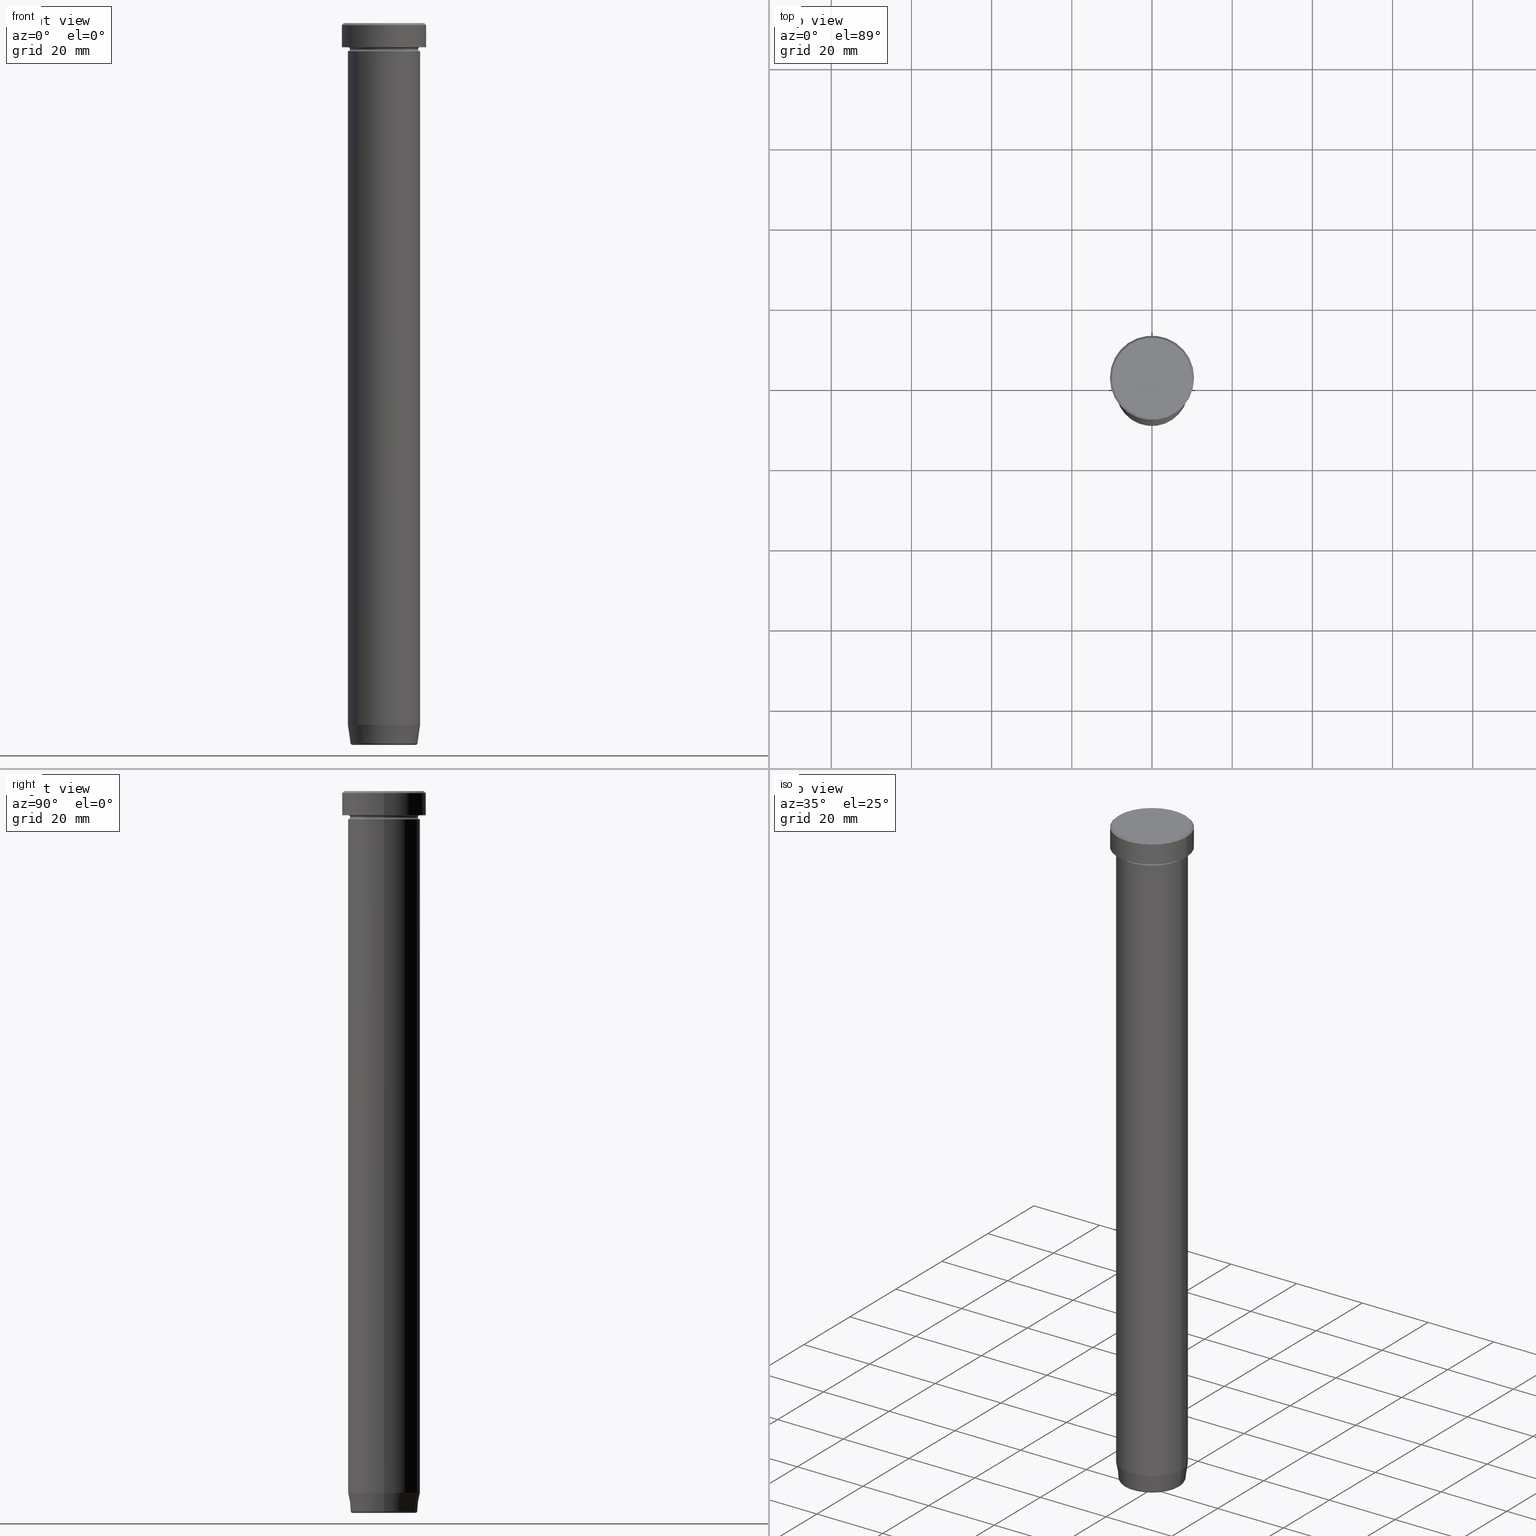
[diagram: canonical four-view strip — front | top / right | iso, engineering-drawing reading convention]
A machine part, canonical four-view strip (front | top / right | iso — engineering-drawing reading convention). The complete STEP part file that produces these views, byte-faithful:
ISO-10303-21;
HEADER;
FILE_DESCRIPTION (( 'STEP AP203' ),
    '1' );
FILE_NAME ('ff41.STEP',
    '2024-01-02T19:32:42',
    ( '' ),
    ( '' ),
    'SwSTEP 2.0',
    'SolidWorks 2019',
    '' );
FILE_SCHEMA (( 'CONFIG_CONTROL_DESIGN' ));
ENDSEC;

DATA;
#1 = EDGE_CURVE ( 'NONE', #506, #170, #214, .T. ) ;
#2 = ORIENTED_EDGE ( 'NONE', *, *, #432, .T. ) ;
#3 = CARTESIAN_POINT ( 'NONE',  ( 0.000000000000000000, 0.000000000000000000, 0.000000000000000000 ) ) ;
#4 = DIRECTION ( 'NONE',  ( 1.224646799147353207E-16, 1.000000000000000000, 0.000000000000000000 ) ) ;
#5 = ORIENTED_EDGE ( 'NONE', *, *, #24, .T. ) ;
#6 = AXIS2_PLACEMENT_3D ( 'NONE', #279, #282, #413 ) ;
#7 = SHAPE_DEFINITION_REPRESENTATION ( #100, #233 ) ;
#8 = ORIENTED_EDGE ( 'NONE', *, *, #472, .T. ) ;
#9 = FACE_OUTER_BOUND ( 'NONE', #414, .T. ) ;
#10 = ORIENTED_EDGE ( 'NONE', *, *, #1, .T. ) ;
#11 = DATE_AND_TIME ( #202, #352 ) ;
#12 = ORIENTED_EDGE ( 'NONE', *, *, #432, .F. ) ;
#13 = DIRECTION ( 'NONE',  ( 1.000000000000000000, 0.000000000000000000, 0.000000000000000000 ) ) ;
#14 = FACE_OUTER_BOUND ( 'NONE', #498, .T. ) ;
#15 = ADVANCED_FACE ( 'NONE', ( #274 ), #357, .T. ) ;
#16 = ORIENTED_EDGE ( 'NONE', *, *, #447, .T. ) ;
#17 = APPROVAL_STATUS ( 'not_yet_approved' ) ;
#18 = AXIS2_PLACEMENT_3D ( 'NONE', #152, #53, #342 ) ;
#19 = CONICAL_SURFACE ( 'NONE', #496, 10.00000000000000178, 0.7853981633974447263 ) ;
#20 = LINE ( 'NONE', #300, #351 ) ;
#21 = CARTESIAN_POINT ( 'NONE',  ( -10.50000000000000000, 1.285879139104720831E-15, -0.5000000000000023315 ) ) ;
#22 = ORIENTED_EDGE ( 'NONE', *, *, #30, .T. ) ;
#23 = DESIGN_CONTEXT ( 'detailed design', #485, 'design' ) ;
#24 = EDGE_CURVE ( 'NONE', #383, #170, #126, .T. ) ;
#25 = FACE_OUTER_BOUND ( 'NONE', #326, .T. ) ;
#26 = DIRECTION ( 'NONE',  ( 0.000000000000000000, 0.000000000000000000, -1.000000000000000000 ) ) ;
#27 = TOROIDAL_SURFACE ( 'NONE', #428, 9.000000000000000000, 0.5000000000000000000 ) ;
#28 = DIRECTION ( 'NONE',  ( 0.000000000000000000, 0.000000000000000000, -1.000000000000000000 ) ) ;
#29 = DIRECTION ( 'NONE',  ( -1.000000000000000000, 0.000000000000000000, 0.000000000000000000 ) ) ;
#30 = EDGE_CURVE ( 'NONE', #199, #220, #85, .T. ) ;
#31 = PLANE ( 'NONE',  #104 ) ;
#32 = VECTOR ( 'NONE', #69, 1000.000000000000000 ) ;
#33 = DIRECTION ( 'NONE',  ( -1.000000000000000000, -1.224646799147353454E-16, 0.000000000000000000 ) ) ;
#34 = EDGE_LOOP ( 'NONE', ( #556, #64, #161, #564 ) ) ;
#35 = PERSON_AND_ORGANIZATION_ROLE ( 'design_owner' ) ;
#36 = EDGE_CURVE ( 'NONE', #331, #559, #68, .T. ) ;
#37 = CARTESIAN_POINT ( 'NONE',  ( 0.000000000000000000, 0.000000000000000000, -175.0000000000000000 ) ) ;
#38 = DIRECTION ( 'NONE',  ( -0.000000000000000000, -0.000000000000000000, 1.000000000000000000 ) ) ;
#39 = DIRECTION ( 'NONE',  ( -0.000000000000000000, -0.000000000000000000, 1.000000000000000000 ) ) ;
#40 = CIRCLE ( 'NONE', #444, 9.000000000000000000 ) ;
#41 = CARTESIAN_POINT ( 'NONE',  ( 0.000000000000000000, 0.000000000000000000, 0.000000000000000000 ) ) ;
#42 = LINE ( 'NONE', #555, #305 ) ;
#43 = VERTEX_POINT ( 'NONE', #509 ) ;
#44 = ORIENTED_EDGE ( 'NONE', *, *, #280, .T. ) ;
#45 = DIRECTION ( 'NONE',  ( 1.000000000000000000, 0.000000000000000000, 0.000000000000000000 ) ) ;
#46 = FACE_OUTER_BOUND ( 'NONE', #595, .T. ) ;
#47 = ADVANCED_FACE ( 'NONE', ( #46 ), #177, .T. ) ;
#48 = EDGE_LOOP ( 'NONE', ( #97, #2, #422, #334 ) ) ;
#49 = CALENDAR_DATE ( 2024, 2, 1 ) ;
#50 = DIRECTION ( 'NONE',  ( -0.000000000000000000, -0.000000000000000000, 1.000000000000000000 ) ) ;
#51 = AXIS2_PLACEMENT_3D ( 'NONE', #585, #122, #313 ) ;
#52 = COORDINATED_UNIVERSAL_TIME_OFFSET ( 1, 0, .AHEAD. ) ;
#53 = DIRECTION ( 'NONE',  ( 0.000000000000000000, 0.000000000000000000, -1.000000000000000000 ) ) ;
#54 = CARTESIAN_POINT ( 'NONE',  ( -8.357786491950713881, 1.062857883382530116E-15, -179.5695865504800111 ) ) ;
#55 = EDGE_CURVE ( 'NONE', #199, #448, #596, .T. ) ;
#56 = PERSON ( 'NEUR�EN�', 'NEUR�EN�', 'NEUR�EN�', ('NEUR�EN�'), ('NEUR�EN�'), ('NEUR�EN�') ) ;
#57 = CARTESIAN_POINT ( 'NONE',  ( 0.000000000000000000, 0.000000000000000000, 0.000000000000000000 ) ) ;
#58 = ORIENTED_EDGE ( 'NONE', *, *, #353, .F. ) ;
#59 = DATE_AND_TIME ( #49, #455 ) ;
#60 = AXIS2_PLACEMENT_3D ( 'NONE', #231, #137, #281 ) ;
#61 = CIRCLE ( 'NONE', #168, 0.5000000000000004441 ) ;
#62 = CC_DESIGN_APPROVAL ( #415, ( #340 ) ) ;
#63 = DIRECTION ( 'NONE',  ( 0.000000000000000000, 0.000000000000000000, -1.000000000000000000 ) ) ;
#64 = ORIENTED_EDGE ( 'NONE', *, *, #111, .T. ) ;
#65 = EDGE_CURVE ( 'NONE', #495, #386, #543, .T. ) ;
#66 = ORIENTED_EDGE ( 'NONE', *, *, #472, .F. ) ;
#67 = CARTESIAN_POINT ( 'NONE',  ( 0.000000000000000000, 0.000000000000000000, 0.000000000000000000 ) ) ;
#68 = CIRCLE ( 'NONE', #271, 8.499999999999998224 ) ;
#69 = DIRECTION ( 'NONE',  ( -0.1391731009600659097, 1.704378926181561528E-17, 0.9902680687415702510 ) ) ;
#70 = CONICAL_SURFACE ( 'NONE', #18, 10.00000000000000178, 0.7853981633974447263 ) ;
#71 = CARTESIAN_POINT ( 'NONE',  ( 0.000000000000000000, 0.000000000000000000, 0.000000000000000000 ) ) ;
#72 = CIRCLE ( 'NONE', #347, 10.00000000000000178 ) ;
#73 = DIRECTION ( 'NONE',  ( -1.000000000000000000, 0.000000000000000000, 0.000000000000000000 ) ) ;
#74 = ADVANCED_FACE ( 'NONE', ( #599 ), #244, .T. ) ;
#75 = CC_DESIGN_APPROVAL ( #590, ( #524 ) ) ;
#76 = EDGE_LOOP ( 'NONE', ( #179, #366, #269, #187 ) ) ;
#77 = CARTESIAN_POINT ( 'NONE',  ( 0.000000000000000000, 0.000000000000000000, -22.00000000000000000 ) ) ;
#78 = DIRECTION ( 'NONE',  ( 1.000000000000000000, 0.000000000000000000, 0.000000000000000000 ) ) ;
#79 = CIRCLE ( 'NONE', #248, 9.000000000000000000 ) ;
#80 = ORIENTED_EDGE ( 'NONE', *, *, #315, .F. ) ;
#81 = EDGE_CURVE ( 'NONE', #459, #390, #550, .T. ) ;
#82 = CARTESIAN_POINT ( 'NONE',  ( 0.000000000000000000, 0.000000000000000000, 0.000000000000000000 ) ) ;
#83 = AXIS2_PLACEMENT_3D ( 'NONE', #188, #234, #238 ) ;
#84 = CC_DESIGN_PERSON_AND_ORGANIZATION_ASSIGNMENT ( #98, #294, ( #340 ) ) ;
#85 = CIRCLE ( 'NONE', #379, 9.000000000000000000 ) ;
#86 = DIRECTION ( 'NONE',  ( 0.000000000000000000, 0.000000000000000000, -1.000000000000000000 ) ) ;
#87 = DIRECTION ( 'NONE',  ( -1.000000000000000000, 1.224646799147353454E-16, 0.000000000000000000 ) ) ;
#88 = FACE_OUTER_BOUND ( 'NONE', #286, .T. ) ;
#89 = DIRECTION ( 'NONE',  ( -0.000000000000000000, -0.000000000000000000, 1.000000000000000000 ) ) ;
#90 = AXIS2_PLACEMENT_3D ( 'NONE', #440, #480, #116 ) ;
#91 = CIRCLE ( 'NONE', #181, 10.50000000000000000 ) ;
#92 = ORIENTED_EDGE ( 'NONE', *, *, #361, .T. ) ;
#93 = DIRECTION ( 'NONE',  ( -0.000000000000000000, -0.000000000000000000, 1.000000000000000000 ) ) ;
#94 = CARTESIAN_POINT ( 'NONE',  ( 0.000000000000000000, 0.000000000000000000, -7.000000000000000000 ) ) ;
#95 = EDGE_CURVE ( 'NONE', #559, #210, #525, .T. ) ;
#96 = ORIENTED_EDGE ( 'NONE', *, *, #402, .T. ) ;
#97 = ORIENTED_EDGE ( 'NONE', *, *, #534, .T. ) ;
#98 = PERSON_AND_ORGANIZATION ( #56, #463 ) ;
#99 = DIRECTION ( 'NONE',  ( -0.000000000000000000, -0.000000000000000000, 1.000000000000000000 ) ) ;
#100 = PRODUCT_DEFINITION_SHAPE ( 'NONE', 'NONE',  #264 ) ;
#101 = COORDINATED_UNIVERSAL_TIME_OFFSET ( 1, 0, .AHEAD. ) ;
#102 = FACE_BOUND ( 'NONE', #515, .T. ) ;
#103 = CARTESIAN_POINT ( 'NONE',  ( 0.000000000000000000, 0.000000000000000000, -7.000000000000000000 ) ) ;
#104 = AXIS2_PLACEMENT_3D ( 'NONE', #310, #314, #500 ) ;
#105 = EDGE_CURVE ( 'NONE', #331, #170, #560, .T. ) ;
#106 = CARTESIAN_POINT ( 'NONE',  ( 0.000000000000000000, 0.000000000000000000, 0.000000000000000000 ) ) ;
#107 = DIRECTION ( 'NONE',  ( 1.000000000000000000, 0.000000000000000000, 0.000000000000000000 ) ) ;
#108 = COORDINATED_UNIVERSAL_TIME_OFFSET ( 1, 0, .AHEAD. ) ;
#109 = FACE_OUTER_BOUND ( 'NONE', #48, .T. ) ;
#110 = ORIENTED_EDGE ( 'NONE', *, *, #120, .F. ) ;
#111 = EDGE_CURVE ( 'NONE', #43, #421, #570, .T. ) ;
#112 = EDGE_LOOP ( 'NONE', ( #228, #535, #219, #355 ) ) ;
#113 = AXIS2_PLACEMENT_3D ( 'NONE', #213, #63, #107 ) ;
#114 = AXIS2_PLACEMENT_3D ( 'NONE', #344, #531, #522 ) ;
#115 = CIRCLE ( 'NONE', #249, 7.862652457579924814 ) ;
#116 = DIRECTION ( 'NONE',  ( 1.000000000000000000, 0.000000000000000000, 0.000000000000000000 ) ) ;
#117 = LOCAL_TIME ( 20, 32, 42.00000000000000000, #101 ) ;
#118 = DIRECTION ( 'NONE',  ( -0.000000000000000000, -0.000000000000000000, 1.000000000000000000 ) ) ;
#119 = ORIENTED_EDGE ( 'NONE', *, *, #173, .F. ) ;
#120 = EDGE_CURVE ( 'NONE', #170, #383, #79, .T. ) ;
#121 = ORIENTED_EDGE ( 'NONE', *, *, #488, .F. ) ;
#122 = DIRECTION ( 'NONE',  ( 0.000000000000000000, 0.000000000000000000, -1.000000000000000000 ) ) ;
#123 = AXIS2_PLACEMENT_3D ( 'NONE', #41, #503, #78 ) ;
#124 = ORIENTED_EDGE ( 'NONE', *, *, #453, .F. ) ;
#125 = CARTESIAN_POINT ( 'NONE',  ( 10.50000000000000000, 0.000000000000000000, -0.5000000000000023315 ) ) ;
#126 = CIRCLE ( 'NONE', #582, 9.000000000000000000 ) ;
#127 = VERTEX_POINT ( 'NONE', #562 ) ;
#128 = EDGE_CURVE ( 'NONE', #495, #411, #311, .T. ) ;
#129 = ORIENTED_EDGE ( 'NONE', *, *, #527, .T. ) ;
#130 = CARTESIAN_POINT ( 'NONE',  ( 0.000000000000000000, 0.000000000000000000, -179.5695865504800111 ) ) ;
#131 = CIRCLE ( 'NONE', #113, 10.50000000000000000 ) ;
#132 = CYLINDRICAL_SURFACE ( 'NONE', #486, 9.000000000000000000 ) ;
#133 =( GEOMETRIC_REPRESENTATION_CONTEXT ( 3 ) GLOBAL_UNCERTAINTY_ASSIGNED_CONTEXT ( ( #316 ) ) GLOBAL_UNIT_ASSIGNED_CONTEXT ( ( #557, #553, #359 ) ) REPRESENTATION_CONTEXT ( 'NONE', 'WORKASPACE' ) );
#134 = DIRECTION ( 'NONE',  ( -0.000000000000000000, -0.000000000000000000, 1.000000000000000000 ) ) ;
#135 = DIRECTION ( 'NONE',  ( -0.000000000000000000, -0.000000000000000000, 1.000000000000000000 ) ) ;
#136 = FACE_OUTER_BOUND ( 'NONE', #405, .T. ) ;
#137 = DIRECTION ( 'NONE',  ( -0.000000000000000000, -0.000000000000000000, 1.000000000000000000 ) ) ;
#138 = LINE ( 'NONE', #462, #275 ) ;
#139 = EDGE_CURVE ( 'NONE', #220, #450, #42, .T. ) ;
#140 = CARTESIAN_POINT ( 'NONE',  ( 9.000000000000000000, 0.000000000000000000, -22.00000000000000000 ) ) ;
#141 = AXIS2_PLACEMENT_3D ( 'NONE', #460, #420, #235 ) ;
#142 = AXIS2_PLACEMENT_3D ( 'NONE', #77, #533, #490 ) ;
#143 = ORIENTED_EDGE ( 'NONE', *, *, #447, .F. ) ;
#144 = DATE_AND_TIME ( #206, #241 ) ;
#145 = DIRECTION ( 'NONE',  ( 0.000000000000000000, 0.000000000000000000, -1.000000000000000000 ) ) ;
#146 = DATE_TIME_ROLE ( 'creation_date' ) ;
#147 = FACE_OUTER_BOUND ( 'NONE', #529, .T. ) ;
#148 = APPROVAL ( #388, 'NEUR�EN�' ) ;
#149 = APPROVAL_DATE_TIME ( #380, #415 ) ;
#150 = FACE_OUTER_BOUND ( 'NONE', #291, .T. ) ;
#151 = EDGE_LOOP ( 'NONE', ( #481, #22, #587, #119 ) ) ;
#152 = CARTESIAN_POINT ( 'NONE',  ( 0.000000000000000000, 0.000000000000000000, 0.000000000000000000 ) ) ;
#153 = APPROVAL_ROLE ( '' ) ;
#154 = CYLINDRICAL_SURFACE ( 'NONE', #538, 10.50000000000000000 ) ;
#155 = ORIENTED_EDGE ( 'NONE', *, *, #371, .T. ) ;
#156 = DIRECTION ( 'NONE',  ( 0.000000000000000000, 0.000000000000000000, -1.000000000000000000 ) ) ;
#157 = ADVANCED_FACE ( 'NONE', ( #229 ), #204, .T. ) ;
#158 = CIRCLE ( 'NONE', #141, 9.000000000000000000 ) ;
#159 = AXIS2_PLACEMENT_3D ( 'NONE', #438, #389, #348 ) ;
#160 = CARTESIAN_POINT ( 'NONE',  ( 10.00000000000000178, 1.255262969126037241E-15, 0.000000000000000000 ) ) ;
#161 = ORIENTED_EDGE ( 'NONE', *, *, #594, .T. ) ;
#162 = FACE_OUTER_BOUND ( 'NONE', #304, .T. ) ;
#163 = ORIENTED_EDGE ( 'NONE', *, *, #105, .T. ) ;
#164 = ADVANCED_FACE ( 'NONE', ( #507 ), #132, .T. ) ;
#165 = FACE_OUTER_BOUND ( 'NONE', #567, .T. ) ;
#166 = CONICAL_SURFACE ( 'NONE', #530, 8.297295826488038983, 0.1396263401595468356 ) ;
#167 = DIRECTION ( 'NONE',  ( -0.7071067811865450192, 0.000000000000000000, -0.7071067811865500152 ) ) ;
#168 = AXIS2_PLACEMENT_3D ( 'NONE', #581, #309, #28 ) ;
#169 = ORIENTED_EDGE ( 'NONE', *, *, #1, .F. ) ;
#170 = VERTEX_POINT ( 'NONE', #416 ) ;
#171 = ORIENTED_EDGE ( 'NONE', *, *, #36, .F. ) ;
#172 = CARTESIAN_POINT ( 'NONE',  ( 0.000000000000000000, 0.000000000000000000, -0.5000000000000023315 ) ) ;
#173 = EDGE_CURVE ( 'NONE', #448, #450, #158, .T. ) ;
#174 = DIRECTION ( 'NONE',  ( -0.000000000000000000, -0.000000000000000000, 1.000000000000000000 ) ) ;
#175 = FACE_OUTER_BOUND ( 'NONE', #542, .T. ) ;
#176 = PRODUCT_RELATED_PRODUCT_CATEGORY ( 'detail', '', ( #208 ) ) ;
#177 = PLANE ( 'NONE',  #433 ) ;
#178 = DIRECTION ( 'NONE',  ( 1.000000000000000000, 0.000000000000000000, 0.000000000000000000 ) ) ;
#179 = ORIENTED_EDGE ( 'NONE', *, *, #36, .T. ) ;
#180 = DIRECTION ( 'NONE',  ( 1.000000000000000000, 0.000000000000000000, 0.000000000000000000 ) ) ;
#181 = AXIS2_PLACEMENT_3D ( 'NONE', #172, #443, #263 ) ;
#182 = VERTEX_POINT ( 'NONE', #369 ) ;
#183 = VERTEX_POINT ( 'NONE', #140 ) ;
#184 = DIRECTION ( 'NONE',  ( -0.000000000000000000, -0.000000000000000000, 1.000000000000000000 ) ) ;
#185 = CARTESIAN_POINT ( 'NONE',  ( -9.000000000000000000, 1.102182119232617714E-15, -6.500000000000000888 ) ) ;
#186 = ADVANCED_FACE ( 'NONE', ( #329 ), #154, .T. ) ;
#187 = ORIENTED_EDGE ( 'NONE', *, *, #402, .F. ) ;
#188 = CARTESIAN_POINT ( 'NONE',  ( 0.000000000000000000, 0.000000000000000000, 0.000000000000000000 ) ) ;
#189 = CARTESIAN_POINT ( 'NONE',  ( 0.000000000000000000, 0.000000000000000000, 0.000000000000000000 ) ) ;
#190 = ORIENTED_EDGE ( 'NONE', *, *, #409, .T. ) ;
#191 = CARTESIAN_POINT ( 'NONE',  ( 0.000000000000000000, 0.000000000000000000, -6.500000000000000888 ) ) ;
#192 = CIRCLE ( 'NONE', #90, 9.000000000000000000 ) ;
#193 = TOROIDAL_SURFACE ( 'NONE', #398, 7.862652457579924814, 0.5000000000000000000 ) ;
#194 = TOROIDAL_SURFACE ( 'NONE', #51, 9.000000000000000000, 0.5000000000000000000 ) ;
#195 = ORIENTED_EDGE ( 'NONE', *, *, #173, .T. ) ;
#196 = ORIENTED_EDGE ( 'NONE', *, *, #371, .F. ) ;
#197 = CYLINDRICAL_SURFACE ( 'NONE', #346, 9.000000000000000000 ) ;
#198 = CC_DESIGN_PERSON_AND_ORGANIZATION_ASSIGNMENT ( #458, #35, ( #208 ) ) ;
#199 = VERTEX_POINT ( 'NONE', #303 ) ;
#200 = SECURITY_CLASSIFICATION_LEVEL ( 'unclassified' ) ;
#201 = DIRECTION ( 'NONE',  ( 1.000000000000000000, 0.000000000000000000, 0.000000000000000000 ) ) ;
#202 = CALENDAR_DATE ( 2024, 2, 1 ) ;
#203 = DIRECTION ( 'NONE',  ( 1.000000000000000000, 0.000000000000000000, 0.000000000000000000 ) ) ;
#204 = TOROIDAL_SURFACE ( 'NONE', #404, 7.862652457579924814, 0.5000000000000000000 ) ;
#205 = AXIS2_PLACEMENT_3D ( 'NONE', #449, #265, #29 ) ;
#206 = CALENDAR_DATE ( 2024, 2, 1 ) ;
#207 = CC_DESIGN_SECURITY_CLASSIFICATION ( #340, ( #524 ) ) ;
#208 = PRODUCT ( 'ff41', 'ff41', '', ( #456 ) ) ;
#209 = DIRECTION ( 'NONE',  ( 0.000000000000000000, 0.000000000000000000, -1.000000000000000000 ) ) ;
#210 = VERTEX_POINT ( 'NONE', #429 ) ;
#211 = ADVANCED_FACE ( 'NONE', ( #102, #335 ), #578, .T. ) ;
#212 = APPROVAL_ROLE ( '' ) ;
#213 = CARTESIAN_POINT ( 'NONE',  ( 0.000000000000000000, 0.000000000000000000, -0.5000000000000023315 ) ) ;
#214 = LINE ( 'NONE', #573, #461 ) ;
#215 = LINE ( 'NONE', #407, #317 ) ;
#216 = CIRCLE ( 'NONE', #521, 9.000000000000000000 ) ;
#217 = CARTESIAN_POINT ( 'NONE',  ( 0.000000000000000000, 0.000000000000000000, -6.500000000000000888 ) ) ;
#218 = CC_DESIGN_PERSON_AND_ORGANIZATION_ASSIGNMENT ( #257, #250, ( #264 ) ) ;
#219 = ORIENTED_EDGE ( 'NONE', *, *, #534, .F. ) ;
#220 = VERTEX_POINT ( 'NONE', #385 ) ;
#221 = CARTESIAN_POINT ( 'NONE',  ( 0.000000000000000000, 0.000000000000000000, -22.00000000000000000 ) ) ;
#222 = VECTOR ( 'NONE', #89, 1000.000000000000000 ) ;
#223 = CARTESIAN_POINT ( 'NONE',  ( 9.000000000000000000, 0.000000000000000000, -22.00000000000000000 ) ) ;
#224 = CIRCLE ( 'NONE', #114, 0.5000000000000004441 ) ;
#225 = CARTESIAN_POINT ( 'NONE',  ( -9.000000000000000000, 1.102182119232617714E-15, -22.00000000000000000 ) ) ;
#226 = VECTOR ( 'NONE', #350, 1000.000000000000000 ) ;
#227 = DIRECTION ( 'NONE',  ( 1.000000000000000000, 0.000000000000000000, 0.000000000000000000 ) ) ;
#228 = ORIENTED_EDGE ( 'NONE', *, *, #492, .F. ) ;
#229 = FACE_OUTER_BOUND ( 'NONE', #112, .T. ) ;
#230 = APPLICATION_PROTOCOL_DEFINITION ( 'international standard', 'config_control_design', 1994, #485 ) ;
#231 = CARTESIAN_POINT ( 'NONE',  ( 0.000000000000000000, 0.000000000000000000, -6.000000000000000000 ) ) ;
#232 = DIRECTION ( 'NONE',  ( -0.000000000000000000, -0.000000000000000000, 1.000000000000000000 ) ) ;
#233 = ADVANCED_BREP_SHAPE_REPRESENTATION ( 'ff41', ( #396, #394, #123 ), #133 ) ;
#234 = DIRECTION ( 'NONE',  ( -0.000000000000000000, -0.000000000000000000, 1.000000000000000000 ) ) ;
#235 = DIRECTION ( 'NONE',  ( 1.000000000000000000, 0.000000000000000000, 0.000000000000000000 ) ) ;
#236 = CIRCLE ( 'NONE', #159, 0.5000000000000004441 ) ;
#237 = ADVANCED_FACE ( 'NONE', ( #14 ), #523, .T. ) ;
#238 = DIRECTION ( 'NONE',  ( 1.000000000000000000, 0.000000000000000000, 0.000000000000000000 ) ) ;
#239 = VERTEX_POINT ( 'NONE', #21 ) ;
#240 = DIRECTION ( 'NONE',  ( 1.000000000000000000, 0.000000000000000000, 0.000000000000000000 ) ) ;
#241 = LOCAL_TIME ( 20, 32, 42.00000000000000000, #108 ) ;
#242 = ORIENTED_EDGE ( 'NONE', *, *, #65, .F. ) ;
#243 = CARTESIAN_POINT ( 'NONE',  ( 0.000000000000000000, 0.000000000000000000, -22.00000000000000000 ) ) ;
#244 = CYLINDRICAL_SURFACE ( 'NONE', #552, 9.000000000000000000 ) ;
#245 = ADVANCED_FACE ( 'NONE', ( #147 ), #70, .T. ) ;
#246 = DATE_AND_TIME ( #518, #117 ) ;
#247 = DIRECTION ( 'NONE',  ( -0.000000000000000000, -0.000000000000000000, 1.000000000000000000 ) ) ;
#248 = AXIS2_PLACEMENT_3D ( 'NONE', #94, #426, #289 ) ;
#249 = AXIS2_PLACEMENT_3D ( 'NONE', #358, #26, #399 ) ;
#250 = PERSON_AND_ORGANIZATION_ROLE ( 'creator' ) ;
#251 = ORIENTED_EDGE ( 'NONE', *, *, #81, .F. ) ;
#252 = CARTESIAN_POINT ( 'NONE',  ( 9.000000000000000000, 0.000000000000000000, 0.000000000000000000 ) ) ;
#253 = AXIS2_PLACEMENT_3D ( 'NONE', #464, #368, #33 ) ;
#254 = PERSON_AND_ORGANIZATION ( #56, #463 ) ;
#255 = CARTESIAN_POINT ( 'NONE',  ( 0.000000000000000000, 0.000000000000000000, -6.500000000000000888 ) ) ;
#256 = ORIENTED_EDGE ( 'NONE', *, *, #361, .F. ) ;
#257 = PERSON_AND_ORGANIZATION ( #56, #463 ) ;
#258 = DIRECTION ( 'NONE',  ( 1.000000000000000000, 0.000000000000000000, 0.000000000000000000 ) ) ;
#259 = EDGE_CURVE ( 'NONE', #386, #343, #224, .T. ) ;
#260 = VECTOR ( 'NONE', #569, 1000.000000000000000 ) ;
#261 = CALENDAR_DATE ( 2024, 2, 1 ) ;
#262 = CARTESIAN_POINT ( 'NONE',  ( 0.000000000000000000, 0.000000000000000000, 0.000000000000000000 ) ) ;
#263 = DIRECTION ( 'NONE',  ( 1.000000000000000000, 0.000000000000000000, 0.000000000000000000 ) ) ;
#264 = PRODUCT_DEFINITION ( 'NEZN�M�', '', #524, #23 ) ;
#265 = DIRECTION ( 'NONE',  ( -0.000000000000000000, -0.000000000000000000, 1.000000000000000000 ) ) ;
#266 = AXIS2_PLACEMENT_3D ( 'NONE', #243, #86, #288 ) ;
#267 = APPROVAL_PERSON_ORGANIZATION ( #377, #415, #153 ) ;
#268 = CARTESIAN_POINT ( 'NONE',  ( 10.50000000000000000, 0.000000000000000000, -6.000000000000000000 ) ) ;
#269 = ORIENTED_EDGE ( 'NONE', *, *, #517, .F. ) ;
#270 = DIRECTION ( 'NONE',  ( -1.000000000000000000, 0.000000000000000000, 0.000000000000000000 ) ) ;
#271 = AXIS2_PLACEMENT_3D ( 'NONE', #191, #99, #180 ) ;
#272 = DIRECTION ( 'NONE',  ( 1.000000000000000000, 0.000000000000000000, 0.000000000000000000 ) ) ;
#273 = EDGE_CURVE ( 'NONE', #239, #390, #131, .T. ) ;
#274 = FACE_OUTER_BOUND ( 'NONE', #510, .T. ) ;
#275 = VECTOR ( 'NONE', #408, 1000.000000000000000 ) ;
#276 = FACE_OUTER_BOUND ( 'NONE', #322, .T. ) ;
#277 = DIRECTION ( 'NONE',  ( 0.000000000000000000, 0.000000000000000000, -1.000000000000000000 ) ) ;
#278 = ORIENTED_EDGE ( 'NONE', *, *, #580, .F. ) ;
#279 = CARTESIAN_POINT ( 'NONE',  ( 0.000000000000000000, 0.000000000000000000, -180.0000000000000000 ) ) ;
#280 = EDGE_CURVE ( 'NONE', #411, #220, #20, .T. ) ;
#281 = DIRECTION ( 'NONE',  ( 1.000000000000000000, 0.000000000000000000, 0.000000000000000000 ) ) ;
#282 = DIRECTION ( 'NONE',  ( -0.000000000000000000, -0.000000000000000000, 1.000000000000000000 ) ) ;
#283 = DIRECTION ( 'NONE',  ( 1.000000000000000000, 0.000000000000000000, 0.000000000000000000 ) ) ;
#284 = APPROVAL_PERSON_ORGANIZATION ( #254, #148, #568 ) ;
#285 = ORIENTED_EDGE ( 'NONE', *, *, #128, .T. ) ;
#286 = EDGE_LOOP ( 'NONE', ( #16, #195 ) ) ;
#287 = ORIENTED_EDGE ( 'NONE', *, *, #517, .T. ) ;
#288 = DIRECTION ( 'NONE',  ( -1.000000000000000000, 0.000000000000000000, -0.000000000000000000 ) ) ;
#289 = DIRECTION ( 'NONE',  ( 1.000000000000000000, 0.000000000000000000, 0.000000000000000000 ) ) ;
#290 = EDGE_CURVE ( 'NONE', #220, #199, #192, .T. ) ;
#291 = EDGE_LOOP ( 'NONE', ( #278, #349, #484, #66 ) ) ;
#292 = DIRECTION ( 'NONE',  ( -0.000000000000000000, -0.000000000000000000, 1.000000000000000000 ) ) ;
#293 = ORIENTED_EDGE ( 'NONE', *, *, #320, .F. ) ;
#294 = PERSON_AND_ORGANIZATION_ROLE ( 'classification_officer' ) ;
#295 = ORIENTED_EDGE ( 'NONE', *, *, #65, .T. ) ;
#296 = CARTESIAN_POINT ( 'NONE',  ( 0.000000000000000000, 0.000000000000000000, 0.000000000000000000 ) ) ;
#297 = CIRCLE ( 'NONE', #417, 9.000000000000000000 ) ;
#298 = AXIS2_PLACEMENT_3D ( 'NONE', #549, #134, #227 ) ;
#299 = DIRECTION ( 'NONE',  ( -1.000000000000000000, 0.000000000000000000, 0.000000000000000000 ) ) ;
#300 = CARTESIAN_POINT ( 'NONE',  ( 8.297295826488038983, 0.000000000000000000, -180.0000000000000000 ) ) ;
#301 = ADVANCED_FACE ( 'NONE', ( #109 ), #166, .T. ) ;
#302 = COORDINATED_UNIVERSAL_TIME_OFFSET ( 1, 0, .AHEAD. ) ;
#303 = CARTESIAN_POINT ( 'NONE',  ( -9.000000000000000000, 1.102182119232617714E-15, -175.0000000000000000 ) ) ;
#304 = EDGE_LOOP ( 'NONE', ( #155, #466 ) ) ;
#305 = VECTOR ( 'NONE', #292, 1000.000000000000000 ) ;
#306 = TOROIDAL_SURFACE ( 'NONE', #298, 9.000000000000000000, 0.5000000000000000000 ) ;
#307 = CARTESIAN_POINT ( 'NONE',  ( -8.297295826488038983, 1.016125677548726948E-15, -180.0000000000000000 ) ) ;
#308 = ADVANCED_FACE ( 'NONE', ( #9 ), #197, .T. ) ;
#309 = DIRECTION ( 'NONE',  ( -0.000000000000000000, -1.000000000000000000, -0.000000000000000000 ) ) ;
#310 = CARTESIAN_POINT ( 'NONE',  ( 0.000000000000000000, 1.224646799147353059E-14, -180.0000000000000000 ) ) ;
#311 = CIRCLE ( 'NONE', #427, 0.5000000000000004441 ) ;
#312 = CIRCLE ( 'NONE', #561, 8.357786491950713881 ) ;
#313 = DIRECTION ( 'NONE',  ( -1.000000000000000000, 0.000000000000000000, 0.000000000000000000 ) ) ;
#314 = DIRECTION ( 'NONE',  ( 0.000000000000000000, -0.000000000000000000, 1.000000000000000000 ) ) ;
#315 = EDGE_CURVE ( 'NONE', #210, #182, #297, .T. ) ;
#316 = UNCERTAINTY_MEASURE_WITH_UNIT (LENGTH_MEASURE( 1.000000000000000082E-05 ), #557, 'distance_accuracy_value', 'NONE');
#317 = VECTOR ( 'NONE', #167, 1000.000000000000000 ) ;
#318 = CARTESIAN_POINT ( 'NONE',  ( 8.499999999999998224, 0.000000000000000000, -6.500000000000000888 ) ) ;
#319 = DIRECTION ( 'NONE',  ( -0.000000000000000000, -0.000000000000000000, 1.000000000000000000 ) ) ;
#320 = EDGE_CURVE ( 'NONE', #183, #383, #381, .T. ) ;
#321 = DIRECTION ( 'NONE',  ( 1.000000000000000000, 0.000000000000000000, 0.000000000000000000 ) ) ;
#322 = EDGE_LOOP ( 'NONE', ( #374, #356, #92, #5 ) ) ;
#323 = CARTESIAN_POINT ( 'NONE',  ( 0.000000000000000000, 0.000000000000000000, -179.5000000000000000 ) ) ;
#324 = ORIENTED_EDGE ( 'NONE', *, *, #259, .F. ) ;
#325 = DIRECTION ( 'NONE',  ( -0.000000000000000000, -0.000000000000000000, 1.000000000000000000 ) ) ;
#326 = EDGE_LOOP ( 'NONE', ( #295, #412 ) ) ;
#327 = APPLICATION_CONTEXT ( 'configuration controlled 3d designs of mechanical parts and assemblies' ) ;
#328 = AXIS2_PLACEMENT_3D ( 'NONE', #185, #4, #87 ) ;
#329 = FACE_OUTER_BOUND ( 'NONE', #34, .T. ) ;
#330 = CIRCLE ( 'NONE', #373, 8.499999999999998224 ) ;
#331 = VERTEX_POINT ( 'NONE', #431 ) ;
#332 = CARTESIAN_POINT ( 'NONE',  ( 10.00000000000000178, 1.224646799147353454E-15, 0.000000000000000000 ) ) ;
#333 = DIRECTION ( 'NONE',  ( -0.000000000000000000, -0.000000000000000000, 1.000000000000000000 ) ) ;
#334 = ORIENTED_EDGE ( 'NONE', *, *, #280, .F. ) ;
#335 = FACE_OUTER_BOUND ( 'NONE', #583, .T. ) ;
#336 = CONICAL_SURFACE ( 'NONE', #6, 8.297295826488038983, 0.1396263401595468356 ) ;
#337 = ADVANCED_FACE ( 'NONE', ( #150 ), #19, .T. ) ;
#338 = DIRECTION ( 'NONE',  ( 0.1391731009600659097, 0.000000000000000000, 0.9902680687415702510 ) ) ;
#339 = ORIENTED_EDGE ( 'NONE', *, *, #527, .F. ) ;
#340 = SECURITY_CLASSIFICATION ( '', '', #200 ) ;
#341 = PERSON_AND_ORGANIZATION ( #56, #463 ) ;
#342 = DIRECTION ( 'NONE',  ( -1.000000000000000000, 0.000000000000000000, 0.000000000000000000 ) ) ;
#343 = VERTEX_POINT ( 'NONE', #54 ) ;
#344 = CARTESIAN_POINT ( 'NONE',  ( -7.862652457579924814, 9.628972164983326593E-16, -179.5000000000000000 ) ) ;
#345 = EDGE_CURVE ( 'NONE', #559, #331, #330, .T. ) ;
#346 = AXIS2_PLACEMENT_3D ( 'NONE', #57, #378, #201 ) ;
#347 = AXIS2_PLACEMENT_3D ( 'NONE', #3, #184, #45 ) ;
#348 = DIRECTION ( 'NONE',  ( 0.000000000000000000, 0.000000000000000000, -1.000000000000000000 ) ) ;
#349 = ORIENTED_EDGE ( 'NONE', *, *, #81, .T. ) ;
#350 = DIRECTION ( 'NONE',  ( -0.000000000000000000, -0.000000000000000000, 1.000000000000000000 ) ) ;
#351 = VECTOR ( 'NONE', #338, 1000.000000000000000 ) ;
#352 = LOCAL_TIME ( 20, 32, 42.00000000000000000, #302 ) ;
#353 = EDGE_CURVE ( 'NONE', #421, #43, #454, .T. ) ;
#354 = FACE_OUTER_BOUND ( 'NONE', #76, .T. ) ;
#355 = ORIENTED_EDGE ( 'NONE', *, *, #128, .F. ) ;
#356 = ORIENTED_EDGE ( 'NONE', *, *, #345, .F. ) ;
#357 = CYLINDRICAL_SURFACE ( 'NONE', #83, 9.000000000000000000 ) ;
#358 = CARTESIAN_POINT ( 'NONE',  ( 0.000000000000000000, 0.000000000000000000, -180.0000000000000000 ) ) ;
#359 =( NAMED_UNIT ( * ) SI_UNIT ( $, .STERADIAN. ) SOLID_ANGLE_UNIT ( ) );
#360 = CARTESIAN_POINT ( 'NONE',  ( -9.000000000000000000, 1.102182119232617714E-15, 0.000000000000000000 ) ) ;
#361 = EDGE_CURVE ( 'NONE', #559, #383, #236, .T. ) ;
#362 = TOROIDAL_SURFACE ( 'NONE', #571, 9.000000000000000000, 0.5000000000000000000 ) ;
#363 = DIRECTION ( 'NONE',  ( -1.000000000000000000, 0.000000000000000000, 0.000000000000000000 ) ) ;
#364 = CARTESIAN_POINT ( 'NONE',  ( 0.000000000000000000, 0.000000000000000000, -180.0000000000000000 ) ) ;
#365 = EDGE_LOOP ( 'NONE', ( #324, #242, #285, #124 ) ) ;
#366 = ORIENTED_EDGE ( 'NONE', *, *, #95, .T. ) ;
#367 = PLANE ( 'NONE',  #266 ) ;
#368 = DIRECTION ( 'NONE',  ( -1.224646799147353207E-16, 1.000000000000000000, 0.000000000000000000 ) ) ;
#369 = CARTESIAN_POINT ( 'NONE',  ( -9.000000000000000000, 0.000000000000000000, -6.000000000000000000 ) ) ;
#370 = APPLICATION_PROTOCOL_DEFINITION ( 'international standard', 'config_control_design', 1994, #327 ) ;
#371 = EDGE_CURVE ( 'NONE', #127, #459, #475, .T. ) ;
#372 = DIRECTION ( 'NONE',  ( 0.7071067811865450192, 8.659560562354902043E-17, -0.7071067811865500152 ) ) ;
#373 = AXIS2_PLACEMENT_3D ( 'NONE', #255, #435, #203 ) ;
#374 = ORIENTED_EDGE ( 'NONE', *, *, #105, .F. ) ;
#375 = ORIENTED_EDGE ( 'NONE', *, *, #55, .T. ) ;
#376 = ORIENTED_EDGE ( 'NONE', *, *, #453, .T. ) ;
#377 = PERSON_AND_ORGANIZATION ( #56, #463 ) ;
#378 = DIRECTION ( 'NONE',  ( -0.000000000000000000, -0.000000000000000000, 1.000000000000000000 ) ) ;
#379 = AXIS2_PLACEMENT_3D ( 'NONE', #37, #319, #558 ) ;
#380 = DATE_AND_TIME ( #261, #445 ) ;
#381 = LINE ( 'NONE', #252, #260 ) ;
#382 = CC_DESIGN_DATE_AND_TIME_ASSIGNMENT ( #246, #146, ( #264 ) ) ;
#383 = VERTEX_POINT ( 'NONE', #442 ) ;
#384 = PERSON_AND_ORGANIZATION_ROLE ( 'design_supplier' ) ;
#385 = CARTESIAN_POINT ( 'NONE',  ( 9.000000000000000000, 0.000000000000000000, -175.0000000000000000 ) ) ;
#386 = VERTEX_POINT ( 'NONE', #584 ) ;
#387 = CC_DESIGN_DATE_AND_TIME_ASSIGNMENT ( #59, #437, ( #340 ) ) ;
#388 = APPROVAL_STATUS ( 'not_yet_approved' ) ;
#389 = DIRECTION ( 'NONE',  ( 0.000000000000000000, -1.000000000000000000, 0.000000000000000000 ) ) ;
#390 = VERTEX_POINT ( 'NONE', #125 ) ;
#391 = CLOSED_SHELL ( 'NONE', ( #157, #301, #15, #551, #164, #588, #423, #563 ) ) ;
#392 = ADVANCED_FACE ( 'NONE', ( #354 ), #362, .F. ) ;
#393 = CARTESIAN_POINT ( 'NONE',  ( 0.000000000000000000, 0.000000000000000000, -180.0000000000000000 ) ) ;
#394 = MANIFOLD_SOLID_BREP ( 'Zaoblit4', #391 ) ;
#395 = DIRECTION ( 'NONE',  ( 1.000000000000000000, 0.000000000000000000, 0.000000000000000000 ) ) ;
#396 = MANIFOLD_SOLID_BREP ( 'Zkosen�1', #554 ) ;
#397 = AXIS2_PLACEMENT_3D ( 'NONE', #471, #156, #576 ) ;
#398 = AXIS2_PLACEMENT_3D ( 'NONE', #592, #38, #321 ) ;
#399 = DIRECTION ( 'NONE',  ( 1.000000000000000000, 0.000000000000000000, 0.000000000000000000 ) ) ;
#400 = EDGE_LOOP ( 'NONE', ( #190, #10, #514, #293 ) ) ;
#401 = CARTESIAN_POINT ( 'NONE',  ( -9.000000000000000000, 1.102182119232617714E-15, -22.00000000000000000 ) ) ;
#402 = EDGE_CURVE ( 'NONE', #331, #182, #61, .T. ) ;
#403 = DIRECTION ( 'NONE',  ( 1.000000000000000000, 0.000000000000000000, 0.000000000000000000 ) ) ;
#404 = AXIS2_PLACEMENT_3D ( 'NONE', #323, #135, #410 ) ;
#405 = EDGE_LOOP ( 'NONE', ( #171, #163, #520, #256 ) ) ;
#406 = AXIS2_PLACEMENT_3D ( 'NONE', #71, #118, #403 ) ;
#407 = CARTESIAN_POINT ( 'NONE',  ( -10.00000000000000178, 0.000000000000000000, 0.000000000000000000 ) ) ;
#408 = DIRECTION ( 'NONE',  ( -0.000000000000000000, -0.000000000000000000, 1.000000000000000000 ) ) ;
#409 = EDGE_CURVE ( 'NONE', #183, #506, #511, .T. ) ;
#410 = DIRECTION ( 'NONE',  ( 1.000000000000000000, 0.000000000000000000, 0.000000000000000000 ) ) ;
#411 = VERTEX_POINT ( 'NONE', #540 ) ;
#412 = ORIENTED_EDGE ( 'NONE', *, *, #492, .T. ) ;
#413 = DIRECTION ( 'NONE',  ( 1.000000000000000000, 0.000000000000000000, 0.000000000000000000 ) ) ;
#414 = EDGE_LOOP ( 'NONE', ( #169, #129, #528, #110 ) ) ;
#415 = APPROVAL ( #17, 'NEUR�EN�' ) ;
#416 = CARTESIAN_POINT ( 'NONE',  ( -9.000000000000000000, 1.102182119232617714E-15, -7.000000000000000000 ) ) ;
#417 = AXIS2_PLACEMENT_3D ( 'NONE', #565, #333, #476 ) ;
#418 = DIRECTION ( 'NONE',  ( -0.000000000000000000, -0.000000000000000000, 1.000000000000000000 ) ) ;
#419 = DIRECTION ( 'NONE',  ( 1.000000000000000000, 0.000000000000000000, 0.000000000000000000 ) ) ;
#420 = DIRECTION ( 'NONE',  ( -0.000000000000000000, -0.000000000000000000, 1.000000000000000000 ) ) ;
#421 = VERTEX_POINT ( 'NONE', #268 ) ;
#422 = ORIENTED_EDGE ( 'NONE', *, *, #290, .F. ) ;
#423 = ADVANCED_FACE ( 'NONE', ( #25 ), #31, .F. ) ;
#424 = ORIENTED_EDGE ( 'NONE', *, *, #409, .F. ) ;
#425 = CARTESIAN_POINT ( 'NONE',  ( 0.000000000000000000, 0.000000000000000000, -6.500000000000000888 ) ) ;
#426 = DIRECTION ( 'NONE',  ( -0.000000000000000000, -0.000000000000000000, 1.000000000000000000 ) ) ;
#427 = AXIS2_PLACEMENT_3D ( 'NONE', #516, #547, #277 ) ;
#428 = AXIS2_PLACEMENT_3D ( 'NONE', #425, #418, #467 ) ;
#429 = CARTESIAN_POINT ( 'NONE',  ( 9.000000000000000000, 1.102182119232617714E-15, -6.000000000000000000 ) ) ;
#430 = APPROVAL_DATE_TIME ( #144, #590 ) ;
#431 = CARTESIAN_POINT ( 'NONE',  ( -8.499999999999998224, 1.071565949253933927E-15, -6.500000000000000888 ) ) ;
#432 = EDGE_CURVE ( 'NONE', #343, #199, #579, .T. ) ;
#433 = AXIS2_PLACEMENT_3D ( 'NONE', #504, #512, #468 ) ;
#434 = PERSON_AND_ORGANIZATION_ROLE ( 'creator' ) ;
#435 = DIRECTION ( 'NONE',  ( -0.000000000000000000, -0.000000000000000000, 1.000000000000000000 ) ) ;
#436 = ORIENTED_EDGE ( 'NONE', *, *, #30, .F. ) ;
#437 = DATE_TIME_ROLE ( 'classification_date' ) ;
#438 = CARTESIAN_POINT ( 'NONE',  ( 9.000000000000000000, 0.000000000000000000, -6.500000000000000888 ) ) ;
#439 = CC_DESIGN_APPROVAL ( #148, ( #264 ) ) ;
#440 = CARTESIAN_POINT ( 'NONE',  ( 0.000000000000000000, 0.000000000000000000, -175.0000000000000000 ) ) ;
#441 = AXIS2_PLACEMENT_3D ( 'NONE', #364, #145, #283 ) ;
#442 = CARTESIAN_POINT ( 'NONE',  ( 9.000000000000000000, 0.000000000000000000, -7.000000000000000000 ) ) ;
#443 = DIRECTION ( 'NONE',  ( 0.000000000000000000, 0.000000000000000000, -1.000000000000000000 ) ) ;
#444 = AXIS2_PLACEMENT_3D ( 'NONE', #221, #489, #272 ) ;
#445 = LOCAL_TIME ( 20, 32, 42.00000000000000000, #52 ) ;
#446 = CARTESIAN_POINT ( 'NONE',  ( 7.862652457579924814, 0.000000000000000000, -180.0000000000000000 ) ) ;
#447 = EDGE_CURVE ( 'NONE', #450, #448, #40, .T. ) ;
#448 = VERTEX_POINT ( 'NONE', #225 ) ;
#449 = CARTESIAN_POINT ( 'NONE',  ( 0.000000000000000000, 0.000000000000000000, -179.5695865504800111 ) ) ;
#450 = VERTEX_POINT ( 'NONE', #223 ) ;
#451 = DIRECTION ( 'NONE',  ( 0.000000000000000000, 0.000000000000000000, -1.000000000000000000 ) ) ;
#452 = CIRCLE ( 'NONE', #487, 9.000000000000000000 ) ;
#453 = EDGE_CURVE ( 'NONE', #343, #411, #532, .T. ) ;
#454 = CIRCLE ( 'NONE', #586, 10.50000000000000000 ) ;
#455 = LOCAL_TIME ( 20, 32, 42.00000000000000000, #473 ) ;
#456 = MECHANICAL_CONTEXT ( 'NONE', #327, 'mechanical' ) ;
#457 = CC_DESIGN_PERSON_AND_ORGANIZATION_ASSIGNMENT ( #470, #434, ( #524 ) ) ;
#458 = PERSON_AND_ORGANIZATION ( #56, #463 ) ;
#459 = VERTEX_POINT ( 'NONE', #160 ) ;
#460 = CARTESIAN_POINT ( 'NONE',  ( 0.000000000000000000, 0.000000000000000000, -22.00000000000000000 ) ) ;
#461 = VECTOR ( 'NONE', #174, 1000.000000000000000 ) ;
#462 = CARTESIAN_POINT ( 'NONE',  ( 10.50000000000000000, 0.000000000000000000, 0.000000000000000000 ) ) ;
#463 = ORGANIZATION ( 'NEUR�EN�', 'NEUR�EN�', '' ) ;
#464 = CARTESIAN_POINT ( 'NONE',  ( 9.000000000000000000, 1.102182119232617714E-15, -6.500000000000000888 ) ) ;
#465 = EDGE_CURVE ( 'NONE', #43, #239, #589, .T. ) ;
#466 = ORIENTED_EDGE ( 'NONE', *, *, #580, .T. ) ;
#467 = DIRECTION ( 'NONE',  ( 1.000000000000000000, 0.000000000000000000, 0.000000000000000000 ) ) ;
#468 = DIRECTION ( 'NONE',  ( -1.000000000000000000, 0.000000000000000000, -0.000000000000000000 ) ) ;
#469 = ORIENTED_EDGE ( 'NONE', *, *, #139, .F. ) ;
#470 = PERSON_AND_ORGANIZATION ( #56, #463 ) ;
#471 = CARTESIAN_POINT ( 'NONE',  ( 0.000000000000000000, 10.50000000000000000, -6.000000000000000000 ) ) ;
#472 = EDGE_CURVE ( 'NONE', #127, #239, #215, .T. ) ;
#473 = COORDINATED_UNIVERSAL_TIME_OFFSET ( 1, 0, .AHEAD. ) ;
#474 = ORIENTED_EDGE ( 'NONE', *, *, #111, .F. ) ;
#475 = CIRCLE ( 'NONE', #406, 10.00000000000000178 ) ;
#476 = DIRECTION ( 'NONE',  ( -1.000000000000000000, 0.000000000000000000, 0.000000000000000000 ) ) ;
#477 = APPROVAL_DATE_TIME ( #11, #148 ) ;
#478 = DIRECTION ( 'NONE',  ( 1.000000000000000000, 0.000000000000000000, 0.000000000000000000 ) ) ;
#479 = VECTOR ( 'NONE', #372, 1000.000000000000000 ) ;
#480 = DIRECTION ( 'NONE',  ( -0.000000000000000000, -0.000000000000000000, 1.000000000000000000 ) ) ;
#481 = ORIENTED_EDGE ( 'NONE', *, *, #55, .F. ) ;
#482 = PERSON_AND_ORGANIZATION ( #56, #463 ) ;
#483 = DIRECTION ( 'NONE',  ( 1.000000000000000000, 0.000000000000000000, 0.000000000000000000 ) ) ;
#484 = ORIENTED_EDGE ( 'NONE', *, *, #273, .F. ) ;
#485 = APPLICATION_CONTEXT ( 'configuration controlled 3d designs of mechanical parts and assemblies' ) ;
#486 = AXIS2_PLACEMENT_3D ( 'NONE', #189, #39, #240 ) ;
#487 = AXIS2_PLACEMENT_3D ( 'NONE', #505, #93, #178 ) ;
#488 = EDGE_CURVE ( 'NONE', #390, #239, #91, .T. ) ;
#489 = DIRECTION ( 'NONE',  ( -0.000000000000000000, -0.000000000000000000, 1.000000000000000000 ) ) ;
#490 = DIRECTION ( 'NONE',  ( 1.000000000000000000, 0.000000000000000000, 0.000000000000000000 ) ) ;
#491 = ORIENTED_EDGE ( 'NONE', *, *, #95, .F. ) ;
#492 = EDGE_CURVE ( 'NONE', #386, #495, #115, .T. ) ;
#493 = DIRECTION ( 'NONE',  ( 0.000000000000000000, -0.000000000000000000, 1.000000000000000000 ) ) ;
#494 = ORIENTED_EDGE ( 'NONE', *, *, #273, .T. ) ;
#495 = VERTEX_POINT ( 'NONE', #446 ) ;
#496 = AXIS2_PLACEMENT_3D ( 'NONE', #106, #209, #299 ) ;
#497 = DIRECTION ( 'NONE',  ( -0.000000000000000000, -0.000000000000000000, 1.000000000000000000 ) ) ;
#498 = EDGE_LOOP ( 'NONE', ( #577, #513, #494, #541 ) ) ;
#499 = APPROVAL_PERSON_ORGANIZATION ( #482, #590, #212 ) ;
#500 = DIRECTION ( 'NONE',  ( 1.000000000000000000, 0.000000000000000000, 0.000000000000000000 ) ) ;
#501 = ADVANCED_FACE ( 'NONE', ( #162 ), #536, .T. ) ;
#502 = ORIENTED_EDGE ( 'NONE', *, *, #345, .T. ) ;
#503 = DIRECTION ( 'NONE',  ( 0.000000000000000000, 0.000000000000000000, 1.000000000000000000 ) ) ;
#504 = CARTESIAN_POINT ( 'NONE',  ( 0.000000000000000000, 9.000000000000000000, -22.00000000000000000 ) ) ;
#505 = CARTESIAN_POINT ( 'NONE',  ( 0.000000000000000000, 0.000000000000000000, -22.00000000000000000 ) ) ;
#506 = VERTEX_POINT ( 'NONE', #401 ) ;
#507 = FACE_OUTER_BOUND ( 'NONE', #151, .T. ) ;
#508 = ADVANCED_FACE ( 'NONE', ( #165 ), #194, .F. ) ;
#509 = CARTESIAN_POINT ( 'NONE',  ( -10.50000000000000000, 1.285879139104720831E-15, -6.000000000000000000 ) ) ;
#510 = EDGE_LOOP ( 'NONE', ( #597, #375, #143, #469 ) ) ;
#511 = CIRCLE ( 'NONE', #142, 9.000000000000000000 ) ;
#512 = DIRECTION ( 'NONE',  ( 0.000000000000000000, 0.000000000000000000, -1.000000000000000000 ) ) ;
#513 = ORIENTED_EDGE ( 'NONE', *, *, #465, .T. ) ;
#514 = ORIENTED_EDGE ( 'NONE', *, *, #24, .F. ) ;
#515 = EDGE_LOOP ( 'NONE', ( #287, #546 ) ) ;
#516 = CARTESIAN_POINT ( 'NONE',  ( 7.862652457579924814, 0.000000000000000000, -179.5000000000000000 ) ) ;
#517 = EDGE_CURVE ( 'NONE', #182, #210, #216, .T. ) ;
#518 = CALENDAR_DATE ( 2024, 2, 1 ) ;
#519 = DIRECTION ( 'NONE',  ( -0.000000000000000000, -0.000000000000000000, 1.000000000000000000 ) ) ;
#520 = ORIENTED_EDGE ( 'NONE', *, *, #120, .T. ) ;
#521 = AXIS2_PLACEMENT_3D ( 'NONE', #537, #497, #270 ) ;
#522 = DIRECTION ( 'NONE',  ( -1.000000000000000000, 1.224646799147353454E-16, 0.000000000000000000 ) ) ;
#523 = CYLINDRICAL_SURFACE ( 'NONE', #548, 10.50000000000000000 ) ;
#524 = PRODUCT_DEFINITION_FORMATION_WITH_SPECIFIED_SOURCE ( 'LIBOVOLN�', '', #208, .NOT_KNOWN. ) ;
#525 = CIRCLE ( 'NONE', #253, 0.5000000000000004441 ) ;
#526 = DIRECTION ( 'NONE',  ( -0.000000000000000000, -0.000000000000000000, 1.000000000000000000 ) ) ;
#527 = EDGE_CURVE ( 'NONE', #506, #183, #452, .T. ) ;
#528 = ORIENTED_EDGE ( 'NONE', *, *, #320, .T. ) ;
#529 = EDGE_LOOP ( 'NONE', ( #251, #196, #8, #121 ) ) ;
#530 = AXIS2_PLACEMENT_3D ( 'NONE', #393, #50, #13 ) ;
#531 = DIRECTION ( 'NONE',  ( 1.224646799147353207E-16, 1.000000000000000000, 0.000000000000000000 ) ) ;
#532 = CIRCLE ( 'NONE', #205, 8.357786491950713881 ) ;
#533 = DIRECTION ( 'NONE',  ( -0.000000000000000000, -0.000000000000000000, 1.000000000000000000 ) ) ;
#534 = EDGE_CURVE ( 'NONE', #411, #343, #312, .T. ) ;
#535 = ORIENTED_EDGE ( 'NONE', *, *, #259, .T. ) ;
#536 = PLANE ( 'NONE',  #539 ) ;
#537 = CARTESIAN_POINT ( 'NONE',  ( 0.000000000000000000, 0.000000000000000000, -6.000000000000000000 ) ) ;
#538 = AXIS2_PLACEMENT_3D ( 'NONE', #262, #519, #478 ) ;
#539 = AXIS2_PLACEMENT_3D ( 'NONE', #67, #493, #395 ) ;
#540 = CARTESIAN_POINT ( 'NONE',  ( 8.357786491950713881, 0.000000000000000000, -179.5695865504800111 ) ) ;
#541 = ORIENTED_EDGE ( 'NONE', *, *, #594, .F. ) ;
#542 = EDGE_LOOP ( 'NONE', ( #12, #376, #44, #436 ) ) ;
#543 = CIRCLE ( 'NONE', #441, 7.862652457579924814 ) ;
#544 = CARTESIAN_POINT ( 'NONE',  ( -10.50000000000000000, 1.285879139104720831E-15, 0.000000000000000000 ) ) ;
#545 = ADVANCED_FACE ( 'NONE', ( #136 ), #306, .F. ) ;
#546 = ORIENTED_EDGE ( 'NONE', *, *, #315, .T. ) ;
#547 = DIRECTION ( 'NONE',  ( 0.000000000000000000, -1.000000000000000000, 0.000000000000000000 ) ) ;
#548 = AXIS2_PLACEMENT_3D ( 'NONE', #296, #247, #483 ) ;
#549 = CARTESIAN_POINT ( 'NONE',  ( 0.000000000000000000, 0.000000000000000000, -6.500000000000000888 ) ) ;
#550 = LINE ( 'NONE', #332, #479 ) ;
#551 = ADVANCED_FACE ( 'NONE', ( #88 ), #367, .F. ) ;
#552 = AXIS2_PLACEMENT_3D ( 'NONE', #82, #591, #593 ) ;
#553 =( NAMED_UNIT ( * ) PLANE_ANGLE_UNIT ( ) SI_UNIT ( $, .RADIAN. ) );
#554 = CLOSED_SHELL ( 'NONE', ( #337, #392, #545, #74, #237, #47, #501, #186, #211, #308, #574, #508, #245 ) ) ;
#555 = CARTESIAN_POINT ( 'NONE',  ( 9.000000000000000000, 0.000000000000000000, 0.000000000000000000 ) ) ;
#556 = ORIENTED_EDGE ( 'NONE', *, *, #465, .F. ) ;
#557 =( LENGTH_UNIT ( ) NAMED_UNIT ( * ) SI_UNIT ( .MILLI., .METRE. ) );
#558 = DIRECTION ( 'NONE',  ( 1.000000000000000000, 0.000000000000000000, 0.000000000000000000 ) ) ;
#559 = VERTEX_POINT ( 'NONE', #318 ) ;
#560 = CIRCLE ( 'NONE', #328, 0.5000000000000004441 ) ;
#561 = AXIS2_PLACEMENT_3D ( 'NONE', #130, #232, #363 ) ;
#562 = CARTESIAN_POINT ( 'NONE',  ( -10.00000000000000178, 0.000000000000000000, 0.000000000000000000 ) ) ;
#563 = ADVANCED_FACE ( 'NONE', ( #598 ), #193, .T. ) ;
#564 = ORIENTED_EDGE ( 'NONE', *, *, #488, .T. ) ;
#565 = CARTESIAN_POINT ( 'NONE',  ( 0.000000000000000000, 0.000000000000000000, -6.000000000000000000 ) ) ;
#566 = CC_DESIGN_PERSON_AND_ORGANIZATION_ASSIGNMENT ( #341, #384, ( #524 ) ) ;
#567 = EDGE_LOOP ( 'NONE', ( #491, #502, #96, #80 ) ) ;
#568 = APPROVAL_ROLE ( '' ) ;
#569 = DIRECTION ( 'NONE',  ( -0.000000000000000000, -0.000000000000000000, 1.000000000000000000 ) ) ;
#570 = CIRCLE ( 'NONE', #60, 10.50000000000000000 ) ;
#571 = AXIS2_PLACEMENT_3D ( 'NONE', #217, #451, #73 ) ;
#572 = CARTESIAN_POINT ( 'NONE',  ( 0.000000000000000000, 0.000000000000000000, -6.000000000000000000 ) ) ;
#573 = CARTESIAN_POINT ( 'NONE',  ( -9.000000000000000000, 1.102182119232617714E-15, 0.000000000000000000 ) ) ;
#574 = ADVANCED_FACE ( 'NONE', ( #276 ), #27, .F. ) ;
#575 = APPROVAL_STATUS ( 'not_yet_approved' ) ;
#576 = DIRECTION ( 'NONE',  ( -1.000000000000000000, 0.000000000000000000, -0.000000000000000000 ) ) ;
#577 = ORIENTED_EDGE ( 'NONE', *, *, #353, .T. ) ;
#578 = PLANE ( 'NONE',  #397 ) ;
#579 = LINE ( 'NONE', #307, #32 ) ;
#580 = EDGE_CURVE ( 'NONE', #459, #127, #72, .T. ) ;
#581 = CARTESIAN_POINT ( 'NONE',  ( -9.000000000000000000, 0.000000000000000000, -6.500000000000000888 ) ) ;
#582 = AXIS2_PLACEMENT_3D ( 'NONE', #103, #325, #419 ) ;
#583 = EDGE_LOOP ( 'NONE', ( #58, #474 ) ) ;
#584 = CARTESIAN_POINT ( 'NONE',  ( -7.862652457579924814, 9.932154320153875890E-16, -180.0000000000000000 ) ) ;
#585 = CARTESIAN_POINT ( 'NONE',  ( 0.000000000000000000, 0.000000000000000000, -6.500000000000000888 ) ) ;
#586 = AXIS2_PLACEMENT_3D ( 'NONE', #572, #526, #258 ) ;
#587 = ORIENTED_EDGE ( 'NONE', *, *, #139, .T. ) ;
#588 = ADVANCED_FACE ( 'NONE', ( #175 ), #336, .T. ) ;
#589 = LINE ( 'NONE', #544, #226 ) ;
#590 = APPROVAL ( #575, 'NEUR�EN�' ) ;
#591 = DIRECTION ( 'NONE',  ( -0.000000000000000000, -0.000000000000000000, 1.000000000000000000 ) ) ;
#592 = CARTESIAN_POINT ( 'NONE',  ( 0.000000000000000000, 0.000000000000000000, -179.5000000000000000 ) ) ;
#593 = DIRECTION ( 'NONE',  ( 1.000000000000000000, 0.000000000000000000, 0.000000000000000000 ) ) ;
#594 = EDGE_CURVE ( 'NONE', #421, #390, #138, .T. ) ;
#595 = EDGE_LOOP ( 'NONE', ( #424, #339 ) ) ;
#596 = LINE ( 'NONE', #360, #222 ) ;
#597 = ORIENTED_EDGE ( 'NONE', *, *, #290, .T. ) ;
#598 = FACE_OUTER_BOUND ( 'NONE', #365, .T. ) ;
#599 = FACE_OUTER_BOUND ( 'NONE', #400, .T. ) ;
ENDSEC;
END-ISO-10303-21;
